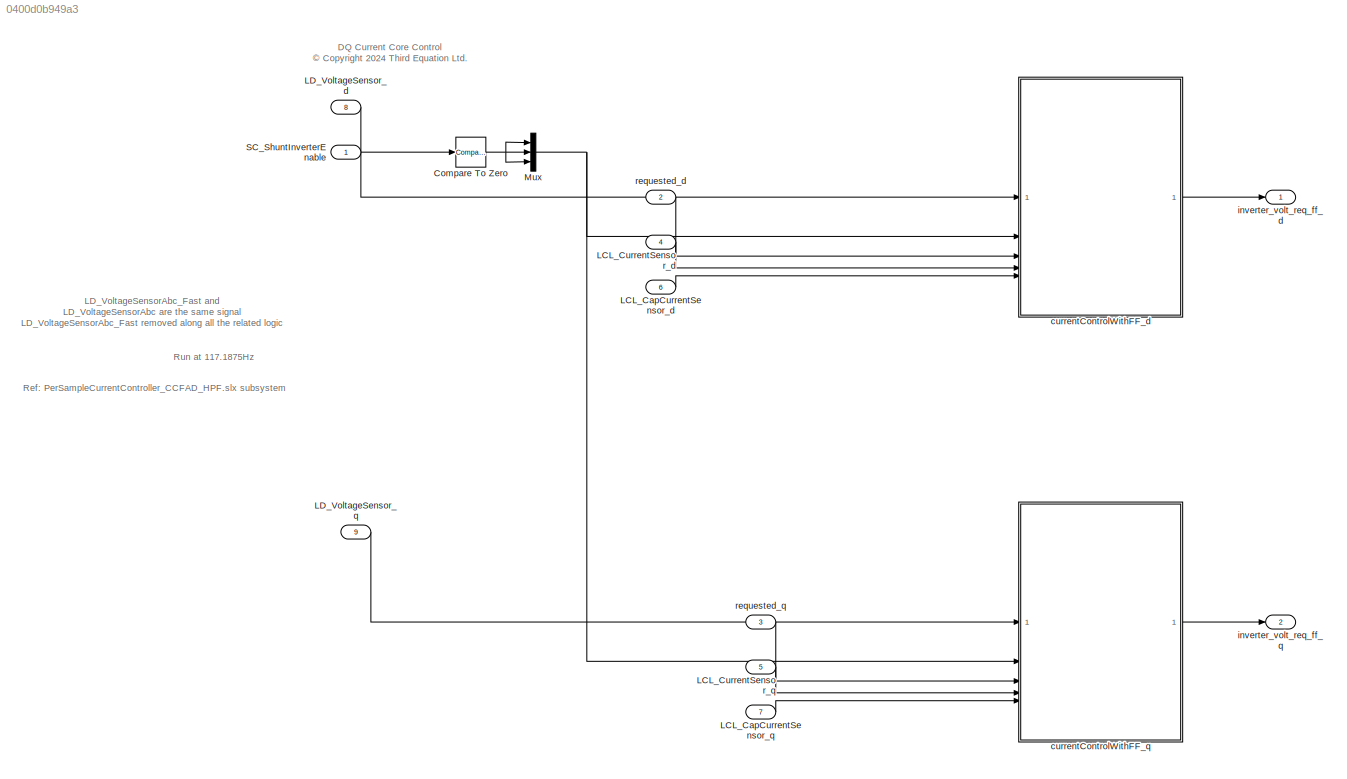
MODEL slx_0400d0b949a3
KIND model
BLOCK [Reference] Compare To Zero  REF=simulink/Logic and Bit
Operations/Compare
To Zero
  SourceBlock = simulink/Logic and Bit\nOperations/Compare\nTo Zero
  SourceType = Compare To Zero
BLOCK [Inport] LCL_CapCurrentSensor_d
  OutDataTypeStr = single
  Port = 6
  PortDimensions = 3
BLOCK [Inport] LCL_CapCurrentSensor_q
  OutDataTypeStr = single
  Port = 7
  PortDimensions = 3
BLOCK [Inport] LCL_CurrentSensor_d
  OutDataTypeStr = single
  Port = 4
  PortDimensions = 3
BLOCK [Inport] LCL_CurrentSensor_q
  OutDataTypeStr = single
  Port = 5
  PortDimensions = 3
BLOCK [Inport] LD_VoltageSensor_d
  OutDataTypeStr = single
  Port = 8
  PortDimensions = 3
BLOCK [Inport] LD_VoltageSensor_q
  OutDataTypeStr = single
  Port = 9
  PortDimensions = 3
BLOCK [Mux] Mux
  DisplayOption = bar
  Inputs = 3
BLOCK [Inport] SC_ShuntInverterEnable
  OutDataTypeStr = boolean
  PortDimensions = 1
BLOCK [SubSystem] currentControlWithFF_d
  PermitHierarchicalResolution = None
  ReferencedSubsystem = currentControlWithFF
BLOCK [SubSystem] currentControlWithFF_q
  PermitHierarchicalResolution = None
  ReferencedSubsystem = currentControlWithFF
BLOCK [Outport] inverter_volt_req_ff_d
  OutDataTypeStr = single
  PortDimensions = 3
BLOCK [Outport] inverter_volt_req_ff_q
  OutDataTypeStr = single
  Port = 2
  PortDimensions = 3
BLOCK [Inport] requested_d
  OutDataTypeStr = single
  Port = 2
  PortDimensions = 3
BLOCK [Inport] requested_q
  OutDataTypeStr = single
  Port = 3
  PortDimensions = 3
ANNOTATION (root): DQ Current Core Control <copyright redacted>
ANNOTATION (root): Run at 117.1875Hz
ANNOTATION (root): LD_VoltageSensorAbc_Fast and LD_VoltageSensorAbc are the same signal LD_VoltageSensorAbc_Fast removed along all the related logic
ANNOTATION (root): Ref: PerSampleCurrentController_CCFAD_HPF.slx subsystem
NET Compare To Zero:1 -> Mux:1, Mux:2, Mux:3
LINE LCL_CapCurrentSensor_d:1 -> currentControlWithFF_d:5
LINE LCL_CapCurrentSensor_q:1 -> currentControlWithFF_q:5
LINE LCL_CurrentSensor_d:1 -> currentControlWithFF_d:4
LINE LCL_CurrentSensor_q:1 -> currentControlWithFF_q:4
LINE LD_VoltageSensor_d:1 -> currentControlWithFF_d:1
LINE LD_VoltageSensor_q:1 -> currentControlWithFF_q:1
NET Mux:1 -> currentControlWithFF_d:2, currentControlWithFF_q:2
LINE SC_ShuntInverterEnable:1 -> Compare To Zero:1
LINE currentControlWithFF_d:1 -> inverter_volt_req_ff_d:1
LINE currentControlWithFF_q:1 -> inverter_volt_req_ff_q:1
LINE requested_d:1 -> currentControlWithFF_d:3
LINE requested_q:1 -> currentControlWithFF_q:3
note: NET lines group one-source signal fan-out (src -> all destinations, sorted); 1:1 wires keep LINE
